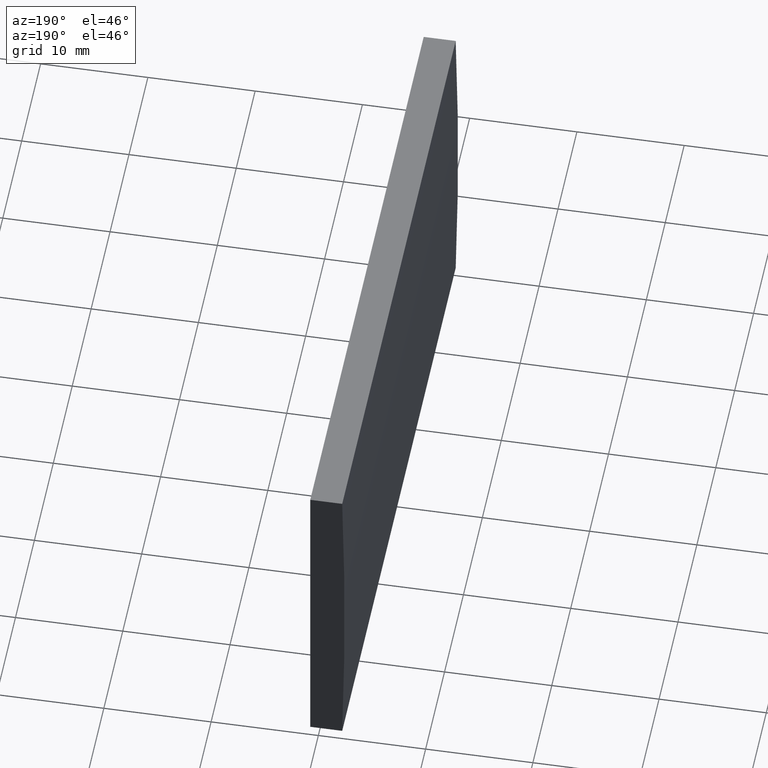
[diagram: clean part render]
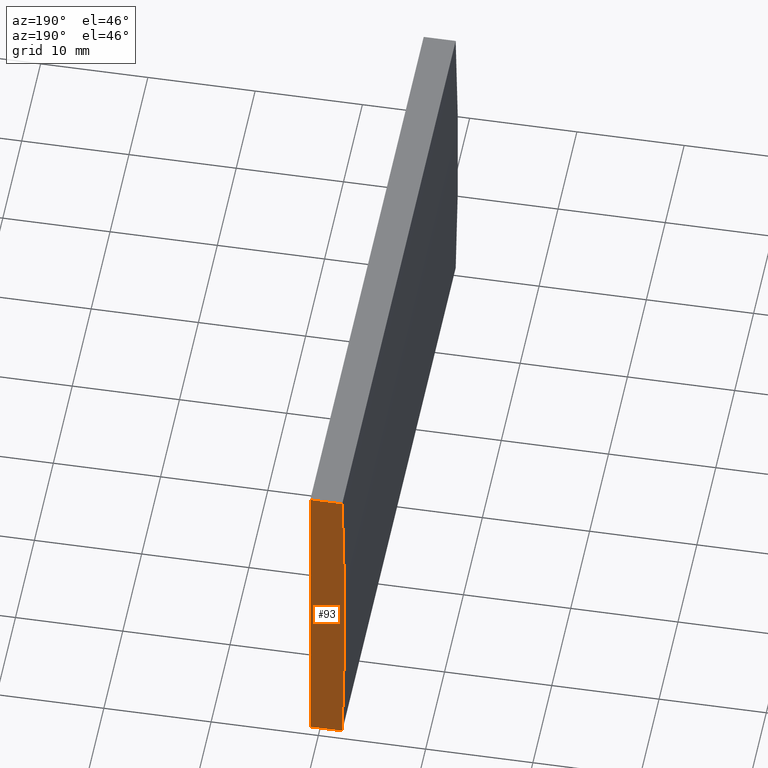
[diagram: same view with one face highlighted and labeled with its STEP entity id]
A machine part, auxiliary view. The second image highlights one B-rep face of the part: STEP entity #93.
In plain terms, the highlighted planar face has unit normal (0, 1, 0).
Its self-contained STEP definition (entity closure, byte-faithful):
#2 = CARTESIAN_POINT ( 'NONE',  ( 4.355204334851265500, 60.00000000000000000, 4.286263797015675000E-017 ) ) ;
#21 = DIRECTION ( 'NONE',  ( 1.000000000000000000, 0.0000000000000000000, 0.0000000000000000000 ) ) ;
#32 = CARTESIAN_POINT ( 'NONE',  ( -512.2270640406708300, 60.00000000000000000, -15.00000000000000000 ) ) ;
#33 = DIRECTION ( 'NONE',  ( 0.0000000000000000000, 0.0000000000000000000, 1.000000000000000000 ) ) ;
#39 = DIRECTION ( 'NONE',  ( 0.0000000000000000000, -0.0000000000000000000, 1.000000000000000000 ) ) ;
#40 = AXIS2_PLACEMENT_3D ( 'NONE', #50, #144, #39 ) ;
#45 = EDGE_CURVE ( 'NONE', #87, #132, #161, .T. ) ;
#50 = CARTESIAN_POINT ( 'NONE',  ( 4.355204334851265500, 60.00000000000000000, 4.286263797015675000E-017 ) ) ;
#53 = VERTEX_POINT ( 'NONE', #183 ) ;
#60 = ORIENTED_EDGE ( 'NONE', *, *, #72, .T. ) ;
#72 = EDGE_CURVE ( 'NONE', #148, #87, #145, .T. ) ;
#83 = EDGE_LOOP ( 'NONE', ( #60, #176, #140, #164 ) ) ;
#85 = VECTOR ( 'NONE', #115, 1000.000000000000000 ) ;
#87 = VERTEX_POINT ( 'NONE', #191 ) ;
#93 = ADVANCED_FACE ( 'NONE', ( #156 ), #170, .T. ) ;
#97 = DIRECTION ( 'NONE',  ( -0.0000000000000000000, -0.0000000000000000000, -1.000000000000000000 ) ) ;
#104 = AXIS2_PLACEMENT_3D ( 'NONE', #2, #163, #33 ) ;
#113 = EDGE_CURVE ( 'NONE', #53, #148, #150, .T. ) ;
#115 = DIRECTION ( 'NONE',  ( -1.000000000000000000, -0.0000000000000000000, -5.351448618768996800E-014 ) ) ;
#116 = CARTESIAN_POINT ( 'NONE',  ( -509.2447956651486700, 60.00000000000000000, 15.00000000000000000 ) ) ;
#117 = VECTOR ( 'NONE', #21, 1000.000000000000000 ) ;
#132 = VERTEX_POINT ( 'NONE', #116 ) ;
#138 = LINE ( 'NONE', #169, #193 ) ;
#140 = ORIENTED_EDGE ( 'NONE', *, *, #165, .T. ) ;
#144 = DIRECTION ( 'NONE',  ( 0.0000000000000000000, 1.000000000000000000, 0.0000000000000000000 ) ) ;
#145 = CIRCLE ( 'NONE', #104, 516.7999999999999500 ) ;
#148 = VERTEX_POINT ( 'NONE', #175 ) ;
#150 = LINE ( 'NONE', #32, #85 ) ;
#156 = FACE_OUTER_BOUND ( 'NONE', #83, .T. ) ;
#161 = LINE ( 'NONE', #162, #117 ) ;
#162 = CARTESIAN_POINT ( 'NONE',  ( -512.2270640406708300, 60.00000000000000000, 15.00000000000000000 ) ) ;
#163 = DIRECTION ( 'NONE',  ( 0.0000000000000000000, 1.000000000000000000, 0.0000000000000000000 ) ) ;
#164 = ORIENTED_EDGE ( 'NONE', *, *, #113, .T. ) ;
#165 = EDGE_CURVE ( 'NONE', #132, #53, #138, .T. ) ;
#169 = CARTESIAN_POINT ( 'NONE',  ( -509.2447956651486700, 60.00000000000000000, -14.99999999999984000 ) ) ;
#170 = PLANE ( 'NONE',  #40 ) ;
#175 = CARTESIAN_POINT ( 'NONE',  ( -512.2270640406708300, 60.00000000000000000, -15.00000000000000000 ) ) ;
#176 = ORIENTED_EDGE ( 'NONE', *, *, #45, .T. ) ;
#183 = CARTESIAN_POINT ( 'NONE',  ( -509.2447956651486700, 60.00000000000000000, -14.99999999999984000 ) ) ;
#191 = CARTESIAN_POINT ( 'NONE',  ( -512.2270640406708300, 60.00000000000000000, 15.00000000000000000 ) ) ;
#193 = VECTOR ( 'NONE', #97, 1000.000000000000000 ) ;